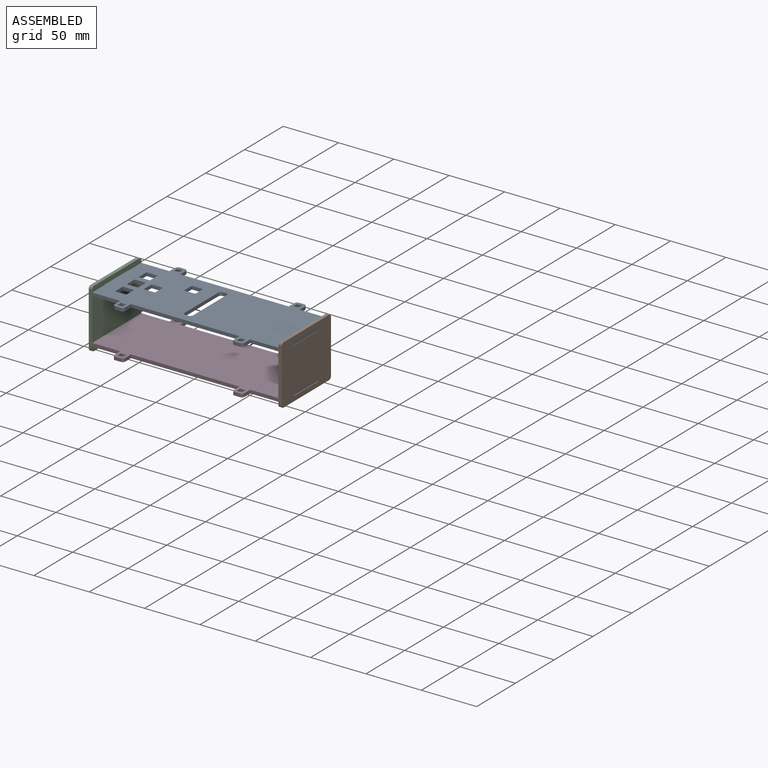
[diagram: assembled view]
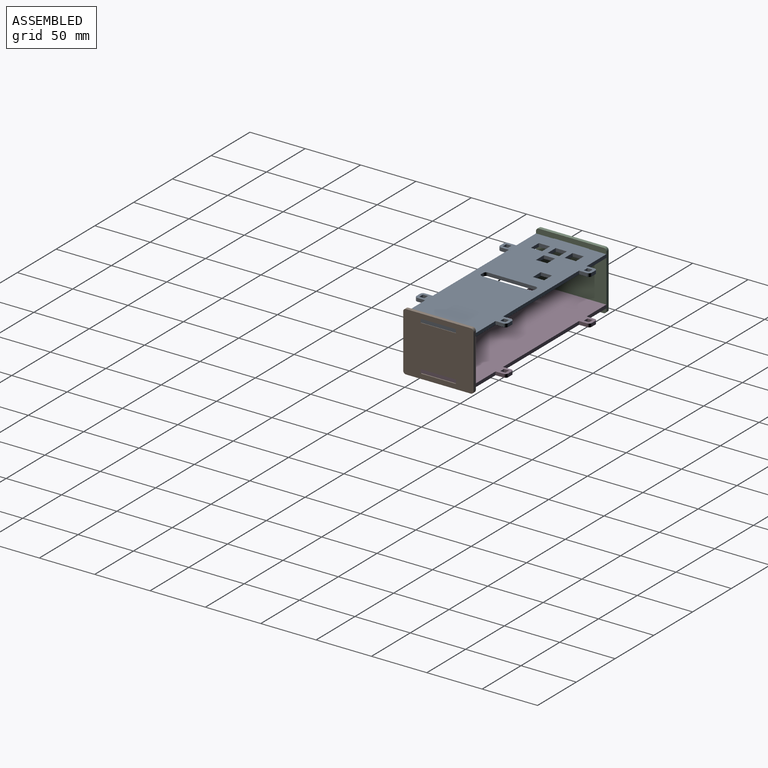
[diagram: assembled view, second angle]
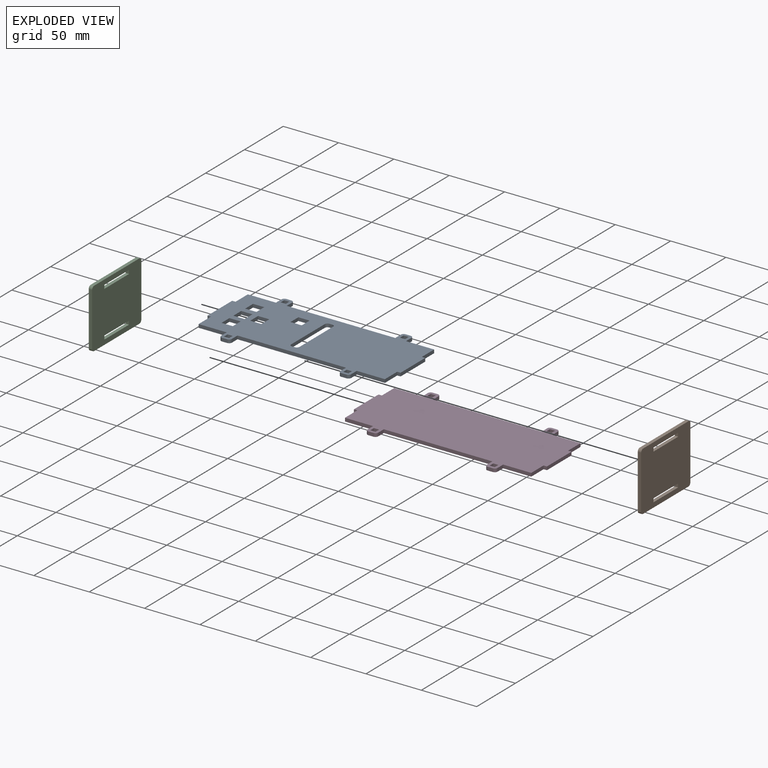
[diagram: exploded view]
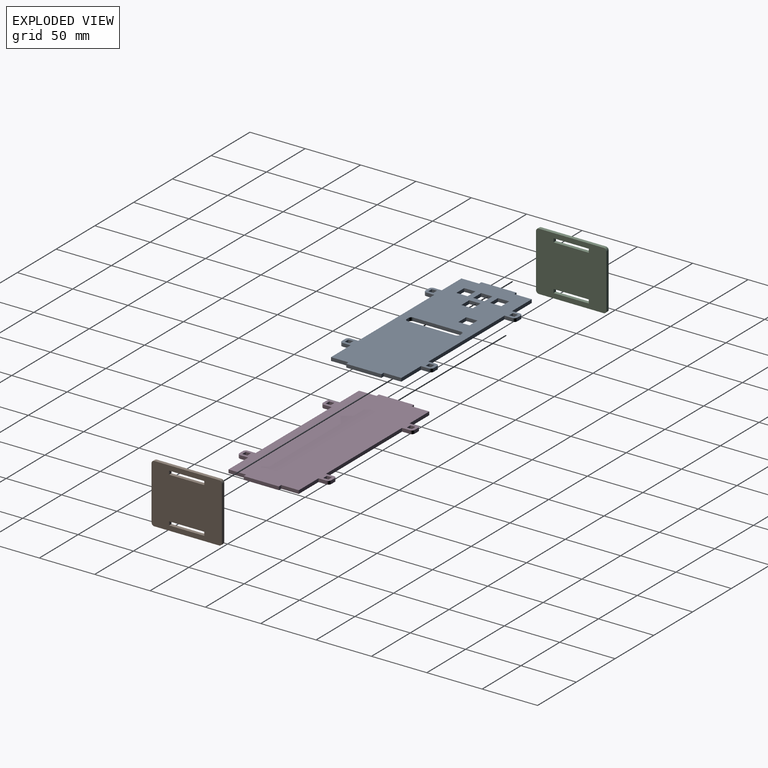
[diagram: exploded view, second angle]
ASSEMBLY  parts=4 mates=3
PART A: 82 faces, bbox 174.4x82.9x3 mm
  f0: plane 25.4x3.05mm, normal (0,1,0), area 77.4mm2, adj f4,f5,f16,f75
  f1: plane 25.4x3.05mm, normal (0,-1,0), area 77.4mm2, adj f4,f5,f12,f70
  f2: plane 98.07x3.05mm, normal (0,1,0), area 298.9mm2, adj f4,f5,f59,f74
  f3: plane 98.07x3.05mm, normal (0,-1,0), area 298.9mm2, adj f4,f5,f48,f71
  f4: plane 174.37x82.91mm, normal (0,0,1), area 10280.7mm2, adj f0,f1,f2,f3,f6,f7,f8,f9
  f5: plane 174.37x82.91mm, normal (0,0,-1), area 10280.7mm2, adj f0,f1,f2,f3,f6,f7,f8,f9
  f6: plane 15.88x3.05mm, normal (-1,0,0), area 48.4mm2, adj f4,f5,f7,f17
  f7: plane 3.05x3.05mm, normal (0,1,0), area 9.3mm2, adj f4,f5,f6,f8
  f8: plane 31.75x3.05mm, normal (-1,0,0), area 96.8mm2, adj f4,f5,f7,f9
  f9: plane 3.05x3.05mm, normal (0,-1,0), area 9.3mm2, adj f4,f5,f8,f10
  f10: plane 15.88x3.05mm, normal (-1,0,0), area 48.4mm2, adj f4,f5,f9,f11
  f11: plane 25.4x3.05mm, normal (0,-1,0), area 77.4mm2, adj f4,f5,f10,f49
  f12: plane 15.88x3.05mm, normal (1,0,0), area 48.4mm2, adj f1,f4,f5,f13
  f13: plane 3.05x3.05mm, normal (0,-1,0), area 9.3mm2, adj f4,f5,f12,f14
  f14: plane 31.75x3.05mm, normal (1,0,0), area 96.8mm2, adj f4,f5,f13,f15
  f15: plane 3.05x3.05mm, normal (0,1,0), area 9.3mm2, adj f4,f5,f14,f16
  f16: plane 15.88x3.05mm, normal (1,0,0), area 48.4mm2, adj f0,f4,f5,f15
  f17: plane 25.4x3.05mm, normal (0,1,0), area 77.4mm2, adj f4,f5,f6,f58
  f18: plane 10.16x3.05mm, normal (0,-1,0), area 31mm2, adj f4,f5,f19,f21
  f19: plane 10.16x3.05mm, normal (1,0,0), area 31mm2, adj f4,f5,f18,f20
  f20: plane 10.16x3.05mm, normal (0,1,0), area 31mm2, adj f4,f5,f19,f21
  f21: plane 10.16x3.05mm, normal (-1,0,0), area 31mm2, adj f4,f5,f18,f20
  f22: plane 10.16x3.05mm, normal (1,0,0), area 31mm2, adj f4,f5,f23,f25
  f23: plane 10.16x3.05mm, normal (0,1,0), area 31mm2, adj f4,f5,f22,f24
  f24: plane 10.16x3.05mm, normal (-1,0,0), area 31mm2, adj f4,f5,f23,f25
  f25: plane 10.16x3.05mm, normal (0,-1,0), area 31mm2, adj f4,f5,f22,f24
  f26: plane 10.16x3.05mm, normal (0,-1,0), area 31mm2, adj f4,f5,f27,f29
  f27: plane 10.16x3.05mm, normal (1,0,0), area 31mm2, adj f4,f5,f26,f28
  f28: plane 10.16x3.05mm, normal (0,1,0), area 31mm2, adj f4,f5,f27,f29
  f29: plane 10.16x3.05mm, normal (-1,0,0), area 31mm2, adj f4,f5,f26,f28
  f30: plane 10.16x3.05mm, normal (-1,0,0), area 31mm2, adj f4,f5,f31,f33
  f31: plane 10.16x3.05mm, normal (0,-1,0), area 31mm2, adj f4,f5,f30,f32
  f32: plane 10.16x3.05mm, normal (1,0,0), area 31mm2, adj f4,f5,f31,f33
  f33: plane 10.16x3.05mm, normal (0,1,0), area 31mm2, adj f4,f5,f30,f32
  f34: plane 10.16x3.05mm, normal (-1,0,0), area 31mm2, adj f4,f5,f35,f37
  f35: plane 10.16x3.05mm, normal (0,-1,0), area 31mm2, adj f4,f5,f34,f36
  f36: plane 10.16x3.05mm, normal (1,0,0), area 31mm2, adj f4,f5,f35,f37
  f37: plane 10.16x3.05mm, normal (0,1,0), area 31mm2, adj f4,f5,f34,f36
  f38: plane 3.05x2.54mm, normal (0,-1,0), area 7.7mm2, adj f4,f5,f39,f45
  f39: cylinder r=2.54mm len=3.05mm, axis (0,0,1), area 12.2mm2, adj f4,f5,f38,f40
  f40: plane 43.18x3.05mm, normal (1,0,0), area 131.6mm2, adj f4,f5,f39,f41
  f41: cylinder r=2.54mm len=3.05mm, axis (0,0,1), area 12.2mm2, adj f4,f5,f40,f42
  f42: plane 3.05x2.54mm, normal (0,1,0), area 7.7mm2, adj f4,f5,f41,f43
  f43: cylinder r=2.54mm len=3.05mm, axis (0,0,1), area 12.2mm2, adj f4,f5,f42,f44
  f44: plane 43.18x3.05mm, normal (-1,0,0), area 131.6mm2, adj f4,f5,f43,f45
  f45: cylinder r=2.54mm len=3.05mm, axis (0,0,1), area 12.2mm2, adj f4,f5,f38,f44
  f46: plane 4.62x3.05mm, normal (0,-1,0), area 14.1mm2, adj f4,f5,f47,f54
  f47: cylinder r=2.54mm len=3.05mm, axis (0,0,1), area 12.2mm2, adj f4,f5,f46,f48
  f48: plane 7.16x3.05mm, normal (1,0,0), area 21.8mm2, adj f3,f4,f5,f47
  f49: plane 7.16x3.05mm, normal (-1,0,0), area 21.8mm2, adj f4,f5,f11,f54
  f50: plane 4.62x3.05mm, normal (1,0,0), area 14.1mm2, adj f4,f5,f51,f53
  f51: plane 4.62x3.05mm, normal (0,-1,0), area 14.1mm2, adj f4,f5,f50,f52
  f52: plane 4.62x3.05mm, normal (-1,0,0), area 14.1mm2, adj f4,f5,f51,f53
  f53: plane 4.62x3.05mm, normal (0,1,0), area 14.1mm2, adj f4,f5,f50,f52
  f54: cylinder r=2.54mm len=3.05mm, axis (0,0,1), area 12.2mm2, adj f4,f5,f46,f49
  f55: plane 4.62x3.05mm, normal (-1,0,0), area 14.1mm2, adj f4,f5,f56,f63
  f56: plane 4.62x3.05mm, normal (0,1,0), area 14.1mm2, adj f4,f5,f55,f57
  f57: plane 4.62x3.05mm, normal (1,0,0), area 14.1mm2, adj f4,f5,f56,f63
  f58: plane 7.16x3.05mm, normal (-1,0,0), area 21.8mm2, adj f4,f5,f17,f62
  f59: plane 7.16x3.05mm, normal (1,0,0), area 21.8mm2, adj f2,f4,f5,f60
  f60: cylinder r=2.54mm len=3.05mm, axis (0,0,1), area 12.2mm2, adj f4,f5,f59,f61
  f61: plane 4.62x3.05mm, normal (0,1,0), area 14.1mm2, adj f4,f5,f60,f62
  f62: cylinder r=2.54mm len=3.05mm, axis (0,0,1), area 12.2mm2, adj f4,f5,f58,f61
  f63: plane 4.62x3.05mm, normal (0,-1,0), area 14.1mm2, adj f4,f5,f55,f57
  f64: plane 4.62x3.05mm, normal (0,1,0), area 14.1mm2, adj f4,f5,f65,f72
  f65: plane 4.62x3.05mm, normal (1,0,0), area 14.1mm2, adj f4,f5,f64,f66
  f66: plane 4.62x3.05mm, normal (0,-1,0), area 14.1mm2, adj f4,f5,f65,f72
  f67: cylinder r=2.54mm len=3.05mm, axis (0,0,1), area 12.2mm2, adj f4,f5,f68,f71
  f68: plane 4.62x3.05mm, normal (0,-1,0), area 14.1mm2, adj f4,f5,f67,f69
  f69: cylinder r=2.54mm len=3.05mm, axis (0,0,1), area 12.2mm2, adj f4,f5,f68,f70
  f70: plane 7.16x3.05mm, normal (1,0,0), area 21.8mm2, adj f1,f4,f5,f69
  f71: plane 7.16x3.05mm, normal (-1,0,0), area 21.8mm2, adj f3,f4,f5,f67
  f72: plane 4.62x3.05mm, normal (-1,0,0), area 14.1mm2, adj f4,f5,f64,f66
  f73: cylinder r=2.54mm len=3.05mm, axis (0,0,1), area 12.2mm2, adj f4,f5,f74,f81
  f74: plane 7.16x3.05mm, normal (-1,0,0), area 21.8mm2, adj f2,f4,f5,f73
  f75: plane 7.16x3.05mm, normal (1,0,0), area 21.8mm2, adj f0,f4,f5,f76
  f76: cylinder r=2.54mm len=3.05mm, axis (0,0,1), area 12.2mm2, adj f4,f5,f75,f81
  f77: plane 4.62x3.05mm, normal (-1,0,0), area 14.1mm2, adj f4,f5,f78,f80
  f78: plane 4.62x3.05mm, normal (0,1,0), area 14.1mm2, adj f4,f5,f77,f79
  f79: plane 4.62x3.05mm, normal (1,0,0), area 14.1mm2, adj f4,f5,f78,f80
  f80: plane 4.62x3.05mm, normal (0,-1,0), area 14.1mm2, adj f4,f5,f77,f79
  f81: plane 4.62x3.05mm, normal (0,1,0), area 14.1mm2, adj f4,f5,f73,f76
PART B: 18 faces, bbox 53.3x63.5x3 mm
  f0: plane 3.3x3.05mm, normal (0,-1,0), area 10.1mm2, adj f1,f11,f12,f13
  f1: plane 31.75x3.05mm, normal (-1,0,0), area 96.8mm2, adj f0,f2,f12,f13
  f2: plane 3.3x3.05mm, normal (0,1,0), area 10.1mm2, adj f1,f11,f12,f13
  f3: plane 58.42x3.05mm, normal (1,0,0), area 178.1mm2, adj f12,f13,f16,f17
  f4: plane 48.26x3.05mm, normal (0,1,0), area 147.1mm2, adj f12,f13,f14,f17
  f5: plane 58.42x3.05mm, normal (-1,0,0), area 178.1mm2, adj f12,f13,f14,f15
  f6: plane 3.3x3.05mm, normal (0,-1,0), area 10.1mm2, adj f7,f10,f12,f13
  f7: plane 31.75x3.05mm, normal (-1,0,0), area 96.8mm2, adj f6,f8,f12,f13
  f8: plane 3.3x3.05mm, normal (0,1,0), area 10.1mm2, adj f7,f10,f12,f13
  f9: plane 48.26x3.05mm, normal (0,-1,0), area 147.1mm2, adj f12,f13,f15,f16
  f10: plane 31.75x3.05mm, normal (1,0,0), area 96.8mm2, adj f6,f8,f12,f13
  f11: plane 31.75x3.05mm, normal (1,0,0), area 96.8mm2, adj f0,f2,f12,f13
  f12: plane 63.5x53.34mm, normal (0,0,1), area 3171.9mm2, adj f0,f1,f2,f3,f4,f5,f6,f7
  f13: plane 63.5x53.34mm, normal (0,0,-1), area 3171.9mm2, adj f0,f1,f2,f3,f4,f5,f6,f7
  f14: cylinder r=2.54mm len=3.05mm, axis (0,0,-1), area 12.2mm2, adj f4,f5,f12,f13
  f15: cylinder r=2.54mm len=3.05mm, axis (0,0,1), area 12.2mm2, adj f5,f9,f12,f13
  f16: cylinder r=2.54mm len=3.05mm, axis (0,0,-1), area 12.2mm2, adj f3,f9,f12,f13
  f17: cylinder r=2.54mm len=3.05mm, axis (0,0,1), area 12.2mm2, adj f3,f4,f12,f13
PART C: same geometry as B
PART D: 54 faces, bbox 174.4x82.9x3 mm
  f0: plane 25.4x3.05mm, normal (0,1,0), area 77.4mm2, adj f14,f16,f17,f47
  f1: plane 25.4x3.05mm, normal (0,-1,0), area 77.4mm2, adj f10,f16,f17,f42
  f2: plane 98.07x3.05mm, normal (0,1,0), area 298.9mm2, adj f16,f17,f31,f46
  f3: plane 98.07x3.05mm, normal (0,-1,0), area 298.9mm2, adj f16,f17,f20,f43
  f4: plane 15.88x3.05mm, normal (-1,0,0), area 48.4mm2, adj f5,f15,f16,f17
  f5: plane 3.05x3.05mm, normal (0,1,0), area 9.3mm2, adj f4,f6,f16,f17
  f6: plane 31.75x3.05mm, normal (-1,0,0), area 96.8mm2, adj f5,f7,f16,f17
  f7: plane 3.05x3.05mm, normal (0,-1,0), area 9.3mm2, adj f6,f8,f16,f17
  f8: plane 15.88x3.05mm, normal (-1,0,0), area 48.4mm2, adj f7,f9,f16,f17
  f9: plane 25.4x3.05mm, normal (0,-1,0), area 77.4mm2, adj f8,f16,f17,f21
  f10: plane 15.88x3.05mm, normal (1,0,0), area 48.4mm2, adj f1,f11,f16,f17
  f11: plane 3.05x3.05mm, normal (0,-1,0), area 9.3mm2, adj f10,f12,f16,f17
  f12: plane 31.75x3.05mm, normal (1,0,0), area 96.8mm2, adj f11,f13,f16,f17
  f13: plane 3.05x3.05mm, normal (0,1,0), area 9.3mm2, adj f12,f14,f16,f17
  f14: plane 15.88x3.05mm, normal (1,0,0), area 48.4mm2, adj f0,f13,f16,f17
  f15: plane 25.4x3.05mm, normal (0,1,0), area 77.4mm2, adj f4,f16,f17,f30
  f16: plane 174.37x82.91mm, normal (0,0,1), area 11159mm2, adj f0,f1,f2,f3,f4,f5,f6,f7
  f17: plane 174.37x82.91mm, normal (0,0,-1), area 11159mm2, adj f0,f1,f2,f3,f4,f5,f6,f7
  f18: plane 4.62x3.05mm, normal (0,-1,0), area 14.1mm2, adj f16,f17,f19,f26
  f19: cylinder r=2.54mm len=3.05mm, axis (0,0,1), area 12.2mm2, adj f16,f17,f18,f20
  f20: plane 7.16x3.05mm, normal (1,0,0), area 21.8mm2, adj f3,f16,f17,f19
  f21: plane 7.16x3.05mm, normal (-1,0,0), area 21.8mm2, adj f9,f16,f17,f26
  f22: plane 4.62x3.05mm, normal (1,0,0), area 14.1mm2, adj f16,f17,f23,f25
  f23: plane 4.62x3.05mm, normal (0,-1,0), area 14.1mm2, adj f16,f17,f22,f24
  f24: plane 4.62x3.05mm, normal (-1,0,0), area 14.1mm2, adj f16,f17,f23,f25
  f25: plane 4.62x3.05mm, normal (0,1,0), area 14.1mm2, adj f16,f17,f22,f24
  f26: cylinder r=2.54mm len=3.05mm, axis (0,0,1), area 12.2mm2, adj f16,f17,f18,f21
  f27: plane 4.62x3.05mm, normal (-1,0,0), area 14.1mm2, adj f16,f17,f28,f35
  f28: plane 4.62x3.05mm, normal (0,1,0), area 14.1mm2, adj f16,f17,f27,f29
  f29: plane 4.62x3.05mm, normal (1,0,0), area 14.1mm2, adj f16,f17,f28,f35
  f30: plane 7.16x3.05mm, normal (-1,0,0), area 21.8mm2, adj f15,f16,f17,f34
  f31: plane 7.16x3.05mm, normal (1,0,0), area 21.8mm2, adj f2,f16,f17,f32
  f32: cylinder r=2.54mm len=3.05mm, axis (0,0,1), area 12.2mm2, adj f16,f17,f31,f33
  f33: plane 4.62x3.05mm, normal (0,1,0), area 14.1mm2, adj f16,f17,f32,f34
  f34: cylinder r=2.54mm len=3.05mm, axis (0,0,1), area 12.2mm2, adj f16,f17,f30,f33
  f35: plane 4.62x3.05mm, normal (0,-1,0), area 14.1mm2, adj f16,f17,f27,f29
  f36: plane 4.62x3.05mm, normal (0,1,0), area 14.1mm2, adj f16,f17,f37,f44
  f37: plane 4.62x3.05mm, normal (1,0,0), area 14.1mm2, adj f16,f17,f36,f38
  f38: plane 4.62x3.05mm, normal (0,-1,0), area 14.1mm2, adj f16,f17,f37,f44
  f39: cylinder r=2.54mm len=3.05mm, axis (0,0,1), area 12.2mm2, adj f16,f17,f40,f43
  f40: plane 4.62x3.05mm, normal (0,-1,0), area 14.1mm2, adj f16,f17,f39,f41
  f41: cylinder r=2.54mm len=3.05mm, axis (0,0,1), area 12.2mm2, adj f16,f17,f40,f42
  f42: plane 7.16x3.05mm, normal (1,0,0), area 21.8mm2, adj f1,f16,f17,f41
  f43: plane 7.16x3.05mm, normal (-1,0,0), area 21.8mm2, adj f3,f16,f17,f39
  f44: plane 4.62x3.05mm, normal (-1,0,0), area 14.1mm2, adj f16,f17,f36,f38
  f45: cylinder r=2.54mm len=3.05mm, axis (0,0,1), area 12.2mm2, adj f16,f17,f46,f53
  f46: plane 7.16x3.05mm, normal (-1,0,0), area 21.8mm2, adj f2,f16,f17,f45
  f47: plane 7.16x3.05mm, normal (1,0,0), area 21.8mm2, adj f0,f16,f17,f48
  f48: cylinder r=2.54mm len=3.05mm, axis (0,0,1), area 12.2mm2, adj f16,f17,f47,f53
  f49: plane 4.62x3.05mm, normal (-1,0,0), area 14.1mm2, adj f16,f17,f50,f52
  f50: plane 4.62x3.05mm, normal (0,1,0), area 14.1mm2, adj f16,f17,f49,f51
  f51: plane 4.62x3.05mm, normal (1,0,0), area 14.1mm2, adj f16,f17,f50,f52
  f52: plane 4.62x3.05mm, normal (0,-1,0), area 14.1mm2, adj f16,f17,f49,f51
  f53: plane 4.62x3.05mm, normal (0,1,0), area 14.1mm2, adj f16,f17,f45,f48
PLACE A rot(axis=(0,-1,0),180deg) t=(183.43,52.62,-7.85)mm
PLACE B rot(axis=(0,-1,0),90deg) t=(186.48,52.62,-49.25)mm
PLACE C rot(axis=(0,-1,0),90deg) t=(15.16,52.62,-48.99)mm
PLACE D t=(15.16,52.62,-52.04)mm
MATE fastened D.f6 <-> C.f12  axis (-1,0,0) through (12.11,20.87,-48.99)mm
MATE fastened A.f8 <-> B.f13  axis (1,0,0) through (186.48,20.87,-7.85)mm
MATE fastened A.f14 <-> C.f12  axis (-1,0,0) through (12.11,20.87,-10.89)mm
